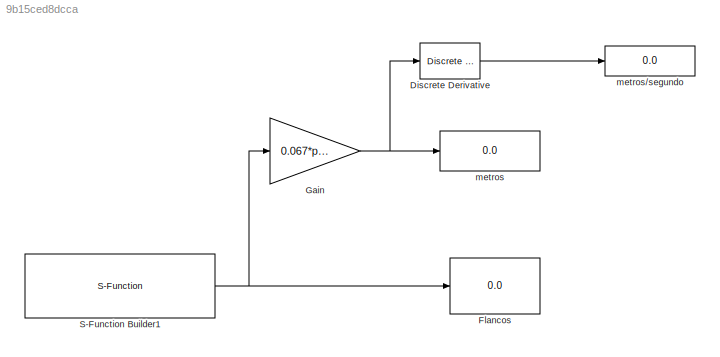
MODEL slx_9b15ced8dcca
KIND model
CONFIG AbsTol = auto
CONFIG EnableMultiTasking = off
CONFIG FixedStep = auto
CONFIG MaxStep = auto
CONFIG MinStep = auto
CONFIG RelTol = 1e-3
CONFIG SampleTimeConstraint = Unconstrained
CONFIG SolverName = VariableStepAuto
CONFIG StartTime = 0.0
CONFIG StopTime = 10.0
BLOCK [Reference] Discrete Derivative  REF=simulink/Discrete/Discrete Derivative
  SourceBlock = simulink/Discrete/Discrete Derivative
  SourceType = Discrete Derivative
BLOCK [Display] Flancos
  Decimation = 1
BLOCK [Gain] Gain
  Gain = 0.067*pi/1503
BLOCK [S-Function] S-Function Builder1
  CopyFcn = set_param(gcbh,'LinkStatus','none')
  EnableBusSupport = off
  FunctionName = encoder_Sfunction
  OpenFcn = sfunctionwizard(gcbh)
  SFcnIsStateOwnerBlock = off
  SFunctionDeploymentMode = off
  SFunctionModules = encoder_Sfunction_wrapper.c
BLOCK [Display] metros
  Decimation = 1
BLOCK [Display] metros//segundo
  Decimation = 1
LINE Discrete Derivative:1 -> metros//segundo:1
NET Gain:1 -> Discrete Derivative:1, metros:1
NET S-Function Builder1:1 -> Flancos:1, Gain:1
note: NET lines group one-source signal fan-out (src -> all destinations, sorted); 1:1 wires keep LINE
